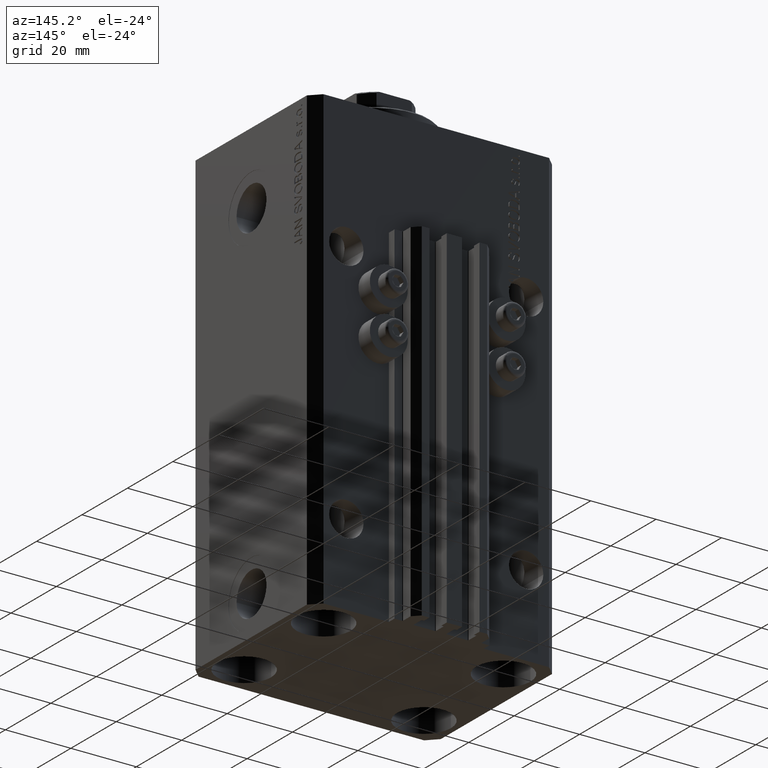
[diagram: clean part render]
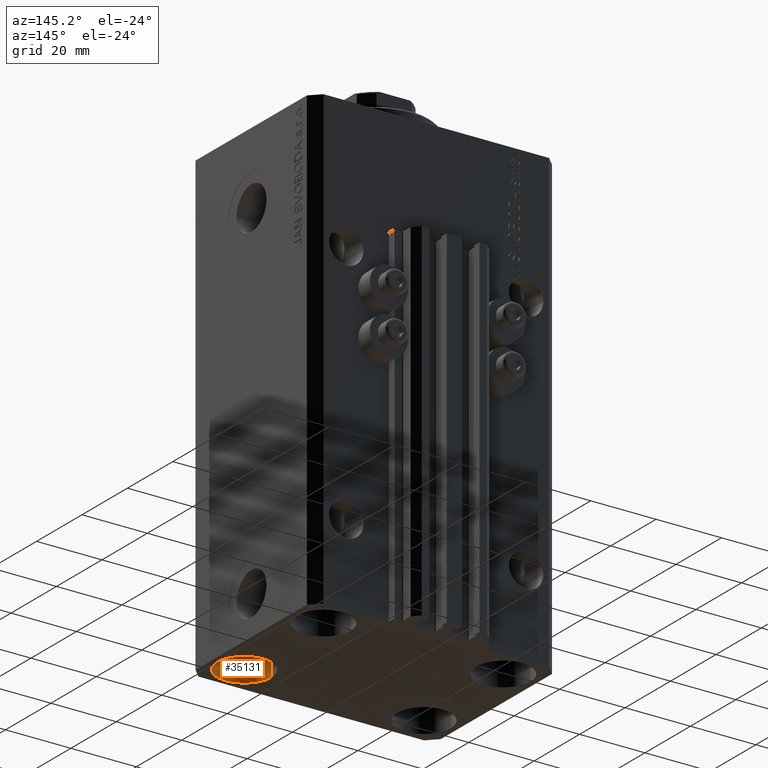
[diagram: same view with one face highlighted and labeled with its STEP entity id]
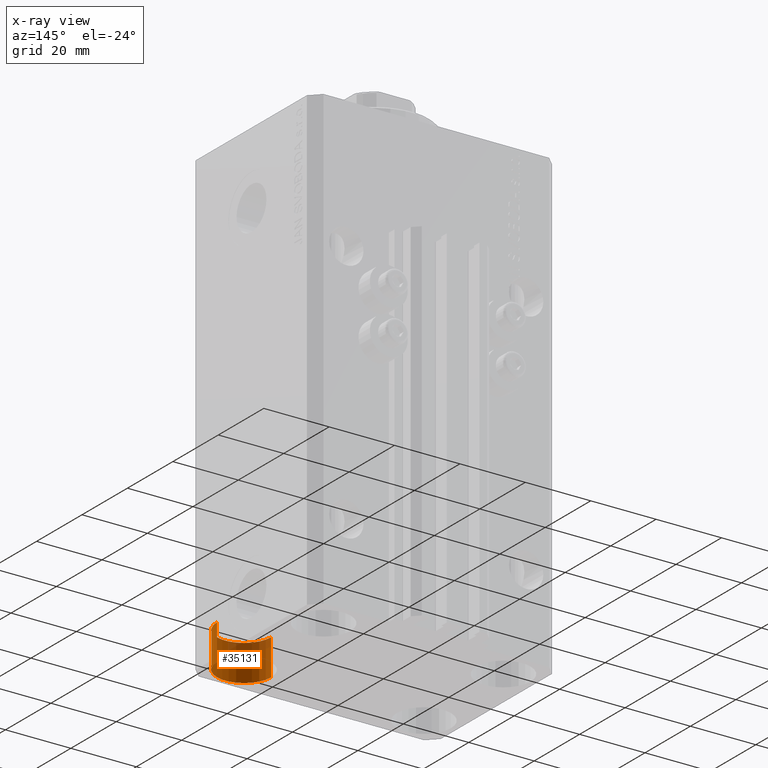
[diagram: x-ray of the same camera — body ghosted, the highlighted face saturated]
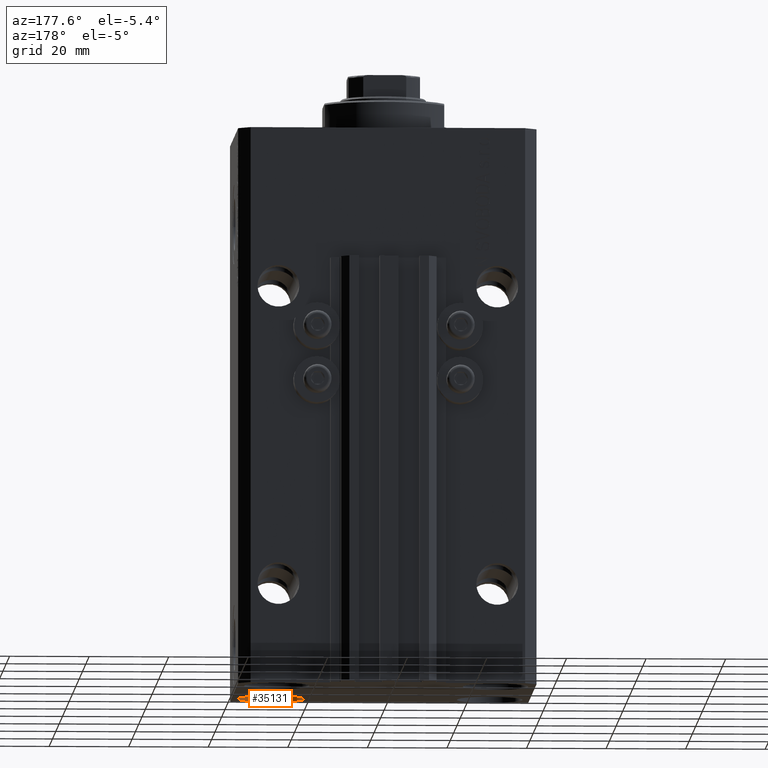
[diagram: same view with one face highlighted and labeled with its STEP entity id]
A machine part, auxiliary view. The second image highlights one B-rep face of the part: STEP entity #35131.
The next image is the same camera in x-ray: the body ghosted, the highlighted face saturated — about 17% of this face is hidden behind the body in this view.
A second angle (auxiliary view) of the same face is appended — the face is thin or edge-on in the first view.
In plain terms, the highlighted cylindrical surface (edge-blend (fillet) strip) has radius 8.25 mm, axis along (-0, -0, -1).
Its self-contained STEP definition (entity closure, byte-faithful):
#1870 = DIRECTION ( 'NONE',  ( -0.000000000000000000, -0.000000000000000000, -1.000000000000000000 ) ) ;
#4003 = EDGE_CURVE ( 'NONE', #27181, #19430, #15431, .T. ) ;
#4662 = VERTEX_POINT ( 'NONE', #5518 ) ;
#5518 = CARTESIAN_POINT ( 'NONE',  ( 35.75000000000000711, -17.50000000000000000, -140.0000000000000000 ) ) ;
#8320 = ORIENTED_EDGE ( 'NONE', *, *, #39100, .F. ) ;
#10853 = DIRECTION ( 'NONE',  ( -0.000000000000000000, -0.000000000000000000, 1.000000000000000000 ) ) ;
#11251 = DIRECTION ( 'NONE',  ( -0.000000000000000000, -0.000000000000000000, -1.000000000000000000 ) ) ;
#12479 = ORIENTED_EDGE ( 'NONE', *, *, #44392, .T. ) ;
#14203 = VECTOR ( 'NONE', #1870, 1000.000000000000000 ) ;
#14470 = DIRECTION ( 'NONE',  ( -0.000000000000000000, -0.000000000000000000, 1.000000000000000000 ) ) ;
#14984 = CARTESIAN_POINT ( 'NONE',  ( 19.25000000000000000, -17.50000000000000000, -129.0000000000000000 ) ) ;
#15431 = LINE ( 'NONE', #30205, #16732 ) ;
#15942 = CARTESIAN_POINT ( 'NONE',  ( 35.75000000000000711, -17.50000000000000000, -129.0000000000000000 ) ) ;
#16732 = VECTOR ( 'NONE', #44952, 1000.000000000000000 ) ;
#17529 = AXIS2_PLACEMENT_3D ( 'NONE', #46677, #14470, #47627 ) ;
#19430 = VERTEX_POINT ( 'NONE', #20348 ) ;
#19915 = AXIS2_PLACEMENT_3D ( 'NONE', #25642, #10853, #33126 ) ;
#20348 = CARTESIAN_POINT ( 'NONE',  ( 19.25000000000000000, -17.50000000000000000, -140.0000000000000000 ) ) ;
#25642 = CARTESIAN_POINT ( 'NONE',  ( 27.50000000000000355, -17.50000000000000000, -129.0000000000000000 ) ) ;
#27181 = VERTEX_POINT ( 'NONE', #14984 ) ;
#27330 = ORIENTED_EDGE ( 'NONE', *, *, #29722, .T. ) ;
#29722 = EDGE_CURVE ( 'NONE', #33063, #4662, #35044, .T. ) ;
#30205 = CARTESIAN_POINT ( 'NONE',  ( 19.25000000000000000, -17.50000000000000000, -129.0000000000000000 ) ) ;
#31484 = CARTESIAN_POINT ( 'NONE',  ( 35.75000000000000711, -17.50000000000000000, -129.0000000000000000 ) ) ;
#33063 = VERTEX_POINT ( 'NONE', #31484 ) ;
#33126 = DIRECTION ( 'NONE',  ( 1.000000000000000000, 0.000000000000000000, 0.000000000000000000 ) ) ;
#35044 = LINE ( 'NONE', #15942, #14203 ) ;
#35131 = ADVANCED_FACE ( 'NONE', ( #44184 ), #40073, .F. ) ;
#39100 = EDGE_CURVE ( 'NONE', #19430, #4662, #46901, .T. ) ;
#39396 = EDGE_LOOP ( 'NONE', ( #12479, #27330, #8320, #41351 ) ) ;
#40073 = CYLINDRICAL_SURFACE ( 'NONE', #45993, 8.250000000000003553 ) ;
#41351 = ORIENTED_EDGE ( 'NONE', *, *, #4003, .F. ) ;
#43085 = CIRCLE ( 'NONE', #19915, 8.250000000000000000 ) ;
#44184 = FACE_OUTER_BOUND ( 'NONE', #39396, .T. ) ;
#44392 = EDGE_CURVE ( 'NONE', #27181, #33063, #43085, .T. ) ;
#44419 = CARTESIAN_POINT ( 'NONE',  ( 27.50000000000000355, -17.50000000000000000, -129.0000000000000000 ) ) ;
#44952 = DIRECTION ( 'NONE',  ( -0.000000000000000000, -0.000000000000000000, -1.000000000000000000 ) ) ;
#45993 = AXIS2_PLACEMENT_3D ( 'NONE', #44419, #11251, #47826 ) ;
#46677 = CARTESIAN_POINT ( 'NONE',  ( 27.50000000000000355, -17.50000000000000000, -140.0000000000000000 ) ) ;
#46901 = CIRCLE ( 'NONE', #17529, 8.250000000000000000 ) ;
#47627 = DIRECTION ( 'NONE',  ( 1.000000000000000000, 0.000000000000000000, 0.000000000000000000 ) ) ;
#47826 = DIRECTION ( 'NONE',  ( -1.000000000000000000, 0.000000000000000000, 0.000000000000000000 ) ) ;